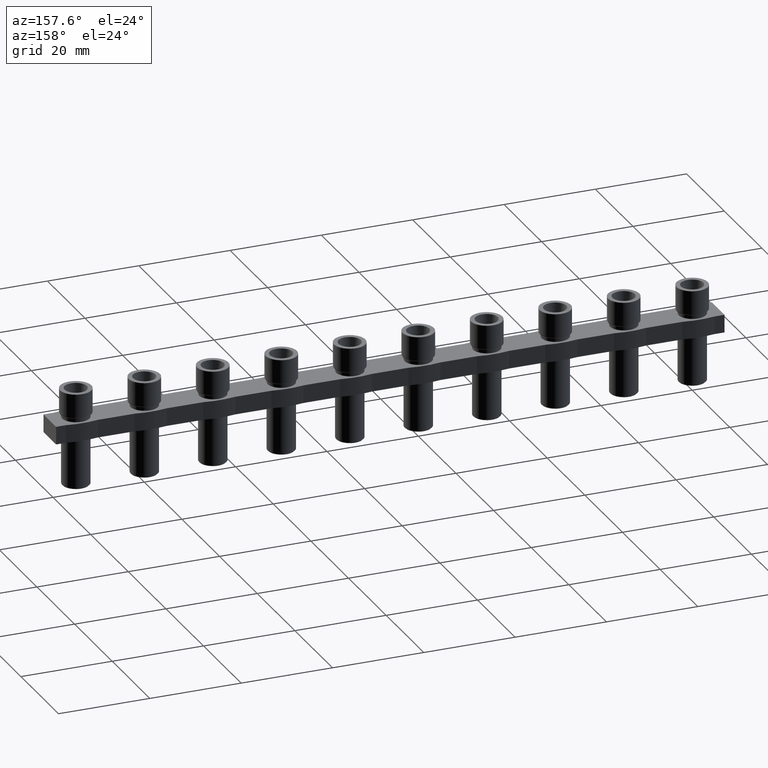
[diagram: clean part render]
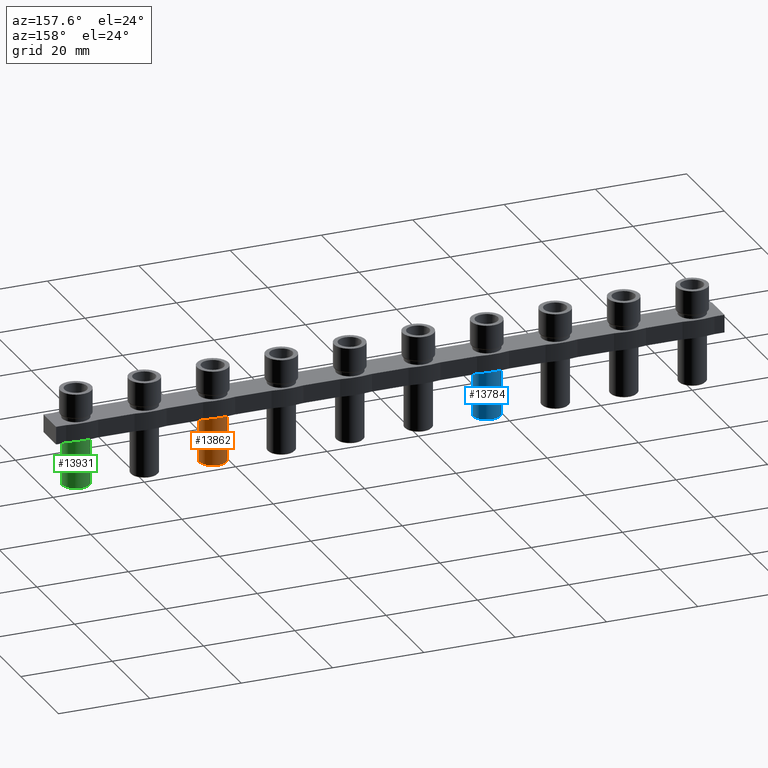
[diagram: same view with three faces highlighted in distinct colors, each labeled with its STEP entity id]
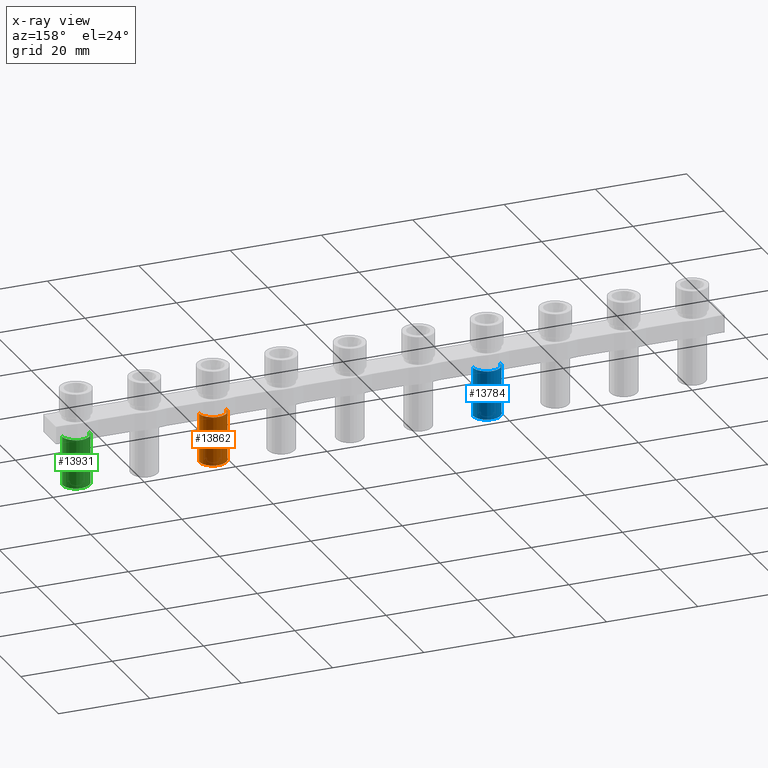
[diagram: x-ray of the same camera — body ghosted, the three highlighted faces saturated]
A machine part, auxiliary view with three faces highlighted in distinct colors.
The next image is the same camera in x-ray (body ghosted, the three faces saturated) — at least one of them is partly hidden behind the body in this view.
Their STEP definitions:

[orange] entity #13862 — the highlighted cylindrical surface (edge-blend (fillet) strip) has radius 3 mm, axis along (0, 0, -1).
#147 = CYLINDRICAL_SURFACE ( 'NONE', #14436, 3.000000000000002700 ) ;
#150 = FACE_OUTER_BOUND ( 'NONE', #3660, .T. ) ;
#152 = CARTESIAN_POINT ( 'NONE',  ( 105.0016776065907700, 3.652635957813867600E-013, -4.800000000000001600 ) ) ;
#170 = DIRECTION ( 'NONE',  ( 1.000000000000000000, 2.491358183583654200E-016, 0.0000000000000000000 ) ) ;
#178 = DIRECTION ( 'NONE',  ( 0.0000000000000000000, 0.0000000000000000000, -1.000000000000000000 ) ) ;
#3660 = EDGE_LOOP ( 'NONE', ( #5886, #5859, #5876, #18261 ) ) ;
#5859 = ORIENTED_EDGE ( 'NONE', *, *, #13180, .T. ) ;
#5876 = ORIENTED_EDGE ( 'NONE', *, *, #13424, .T. ) ;
#5886 = ORIENTED_EDGE ( 'NONE', *, *, #13414, .F. ) ;
#6052 = VERTEX_POINT ( 'NONE', #9357 ) ;
#6064 = VERTEX_POINT ( 'NONE', #9410 ) ;
#6065 = VERTEX_POINT ( 'NONE', #9378 ) ;
#6066 = VERTEX_POINT ( 'NONE', #9418 ) ;
#7784 = DIRECTION ( 'NONE',  ( 1.000000000000000000, 2.491358183583741000E-016, 0.0000000000000000000 ) ) ;
#7809 = DIRECTION ( 'NONE',  ( -0.0000000000000000000, 0.0000000000000000000, -1.000000000000000000 ) ) ;
#7815 = CARTESIAN_POINT ( 'NONE',  ( 105.0016776065907700, 3.652635957813867600E-013, -4.899999999963711200 ) ) ;
#8410 = DIRECTION ( 'NONE',  ( 0.0000000000000000000, 0.0000000000000000000, -1.000000000000000000 ) ) ;
#8416 = CARTESIAN_POINT ( 'NONE',  ( 105.0016776065907700, 3.652635957813867600E-013, -15.60000000000000000 ) ) ;
#8427 = DIRECTION ( 'NONE',  ( 1.000000000000000000, 2.491358183583654200E-016, 0.0000000000000000000 ) ) ;
#9357 = CARTESIAN_POINT ( 'NONE',  ( 102.0016776065418000, 3.641487942865492400E-013, -4.899999999963711200 ) ) ;
#9378 = CARTESIAN_POINT ( 'NONE',  ( 108.0016776065767200, 3.656436091967159300E-013, -15.60000000000000000 ) ) ;
#9410 = CARTESIAN_POINT ( 'NONE',  ( 102.0016776066048300, 3.645161883263151800E-013, -15.60000000000000000 ) ) ;
#9418 = CARTESIAN_POINT ( 'NONE',  ( 108.0016776066397600, 3.660110032364740900E-013, -4.899999999963711200 ) ) ;
#11127 = AXIS2_PLACEMENT_3D ( 'NONE', #8416, #8410, #8427 ) ;
#11151 = CIRCLE ( 'NONE', #11127, 3.000000000000002700 ) ;
#11305 = VECTOR ( 'NONE', #15463, 1000.000000000000000 ) ;
#11346 = VECTOR ( 'NONE', #15529, 1000.000000000000000 ) ;
#12134 = CIRCLE ( 'NONE', #12155, 3.000000000048977300 ) ;
#12155 = AXIS2_PLACEMENT_3D ( 'NONE', #7815, #7809, #7784 ) ;
#13180 = EDGE_CURVE ( 'NONE', #6052, #6066, #12134, .T. ) ;
#13278 = EDGE_CURVE ( 'NONE', #6064, #6065, #11151, .T. ) ;
#13414 = EDGE_CURVE ( 'NONE', #6052, #6064, #15478, .T. ) ;
#13424 = EDGE_CURVE ( 'NONE', #6066, #6065, #15533, .T. ) ;
#13862 = ADVANCED_FACE ( 'NONE', ( #150 ), #147, .T. ) ;
#14436 = AXIS2_PLACEMENT_3D ( 'NONE', #152, #178, #170 ) ;
#15459 = CARTESIAN_POINT ( 'NONE',  ( 102.0016776065907700, 3.641487942865674600E-013, -4.800000000000001600 ) ) ;
#15463 = DIRECTION ( 'NONE',  ( 0.0000000000000000000, 0.0000000000000000000, -1.000000000000000000 ) ) ;
#15478 = LINE ( 'NONE', #15459, #11305 ) ;
#15528 = CARTESIAN_POINT ( 'NONE',  ( 108.0016776065907700, 3.660110032364618800E-013, -4.800000000000001600 ) ) ;
#15529 = DIRECTION ( 'NONE',  ( 0.0000000000000000000, 0.0000000000000000000, -1.000000000000000000 ) ) ;
#15533 = LINE ( 'NONE', #15528, #11346 ) ;
#18261 = ORIENTED_EDGE ( 'NONE', *, *, #13278, .F. ) ;

[blue] entity #13784 — the highlighted cylindrical surface (edge-blend (fillet) strip) has radius 3 mm, axis along (0, 0, -1).
#57 = AXIS2_PLACEMENT_3D ( 'NONE', #1053, #1081, #1141 ) ;
#1051 = FACE_OUTER_BOUND ( 'NONE', #3559, .T. ) ;
#1053 = CARTESIAN_POINT ( 'NONE',  ( 45.00167760659078200, 1.230004896535145500E-013, -4.800000000000001600 ) ) ;
#1080 = CYLINDRICAL_SURFACE ( 'NONE', #57, 3.000000000000002700 ) ;
#1081 = DIRECTION ( 'NONE',  ( 0.0000000000000000000, 0.0000000000000000000, -1.000000000000000000 ) ) ;
#1141 = DIRECTION ( 'NONE',  ( 1.000000000000000000, 2.491358183583736600E-016, 0.0000000000000000000 ) ) ;
#2353 = DIRECTION ( 'NONE',  ( 0.0000000000000000000, 0.0000000000000000000, -1.000000000000000000 ) ) ;
#2356 = CARTESIAN_POINT ( 'NONE',  ( 45.00167760659078200, 1.230004896535145500E-013, -15.60000000000000000 ) ) ;
#2374 = DIRECTION ( 'NONE',  ( 1.000000000000000000, 2.491358183583736600E-016, 0.0000000000000000000 ) ) ;
#3559 = EDGE_LOOP ( 'NONE', ( #3921, #3870, #3886, #3879 ) ) ;
#3870 = ORIENTED_EDGE ( 'NONE', *, *, #13117, .T. ) ;
#3879 = ORIENTED_EDGE ( 'NONE', *, *, #13039, .F. ) ;
#3886 = ORIENTED_EDGE ( 'NONE', *, *, #13556, .T. ) ;
#3921 = ORIENTED_EDGE ( 'NONE', *, *, #13558, .F. ) ;
#6197 = VERTEX_POINT ( 'NONE', #9522 ) ;
#6203 = VERTEX_POINT ( 'NONE', #9491 ) ;
#6229 = VERTEX_POINT ( 'NONE', #9539 ) ;
#6235 = VERTEX_POINT ( 'NONE', #9553 ) ;
#8283 = CARTESIAN_POINT ( 'NONE',  ( 45.00167760659078200, 1.230004896535145500E-013, -4.899999999963711200 ) ) ;
#8284 = DIRECTION ( 'NONE',  ( -0.0000000000000000000, 0.0000000000000000000, -1.000000000000000000 ) ) ;
#8319 = DIRECTION ( 'NONE',  ( 1.000000000000000000, 2.491358183583735100E-016, 0.0000000000000000000 ) ) ;
#9491 = CARTESIAN_POINT ( 'NONE',  ( 42.00167760660483700, 1.222530821984429400E-013, -15.60000000000000000 ) ) ;
#9522 = CARTESIAN_POINT ( 'NONE',  ( 42.00167760654179700, 1.218856881586770500E-013, -4.899999999963711200 ) ) ;
#9539 = CARTESIAN_POINT ( 'NONE',  ( 48.00167760657672700, 1.233805030688436900E-013, -15.60000000000000000 ) ) ;
#9553 = CARTESIAN_POINT ( 'NONE',  ( 48.00167760663976700, 1.237478971086018800E-013, -4.899999999963711200 ) ) ;
#9987 = LINE ( 'NONE', #10070, #11523 ) ;
#10004 = LINE ( 'NONE', #10018, #11546 ) ;
#10005 = DIRECTION ( 'NONE',  ( 0.0000000000000000000, 0.0000000000000000000, -1.000000000000000000 ) ) ;
#10018 = CARTESIAN_POINT ( 'NONE',  ( 42.00167760659078200, 1.218856881586952300E-013, -4.800000000000001600 ) ) ;
#10025 = DIRECTION ( 'NONE',  ( 0.0000000000000000000, 0.0000000000000000000, -1.000000000000000000 ) ) ;
#10070 = CARTESIAN_POINT ( 'NONE',  ( 48.00167760659078200, 1.237478971085896700E-013, -4.800000000000001600 ) ) ;
#11523 = VECTOR ( 'NONE', #10025, 1000.000000000000000 ) ;
#11546 = VECTOR ( 'NONE', #10005, 1000.000000000000000 ) ;
#12003 = CIRCLE ( 'NONE', #12004, 3.000000000000002700 ) ;
#12004 = AXIS2_PLACEMENT_3D ( 'NONE', #2356, #2353, #2374 ) ;
#12111 = AXIS2_PLACEMENT_3D ( 'NONE', #8283, #8284, #8319 ) ;
#12113 = CIRCLE ( 'NONE', #12111, 3.000000000048984400 ) ;
#13039 = EDGE_CURVE ( 'NONE', #6203, #6229, #12003, .T. ) ;
#13117 = EDGE_CURVE ( 'NONE', #6197, #6235, #12113, .T. ) ;
#13556 = EDGE_CURVE ( 'NONE', #6235, #6229, #9987, .T. ) ;
#13558 = EDGE_CURVE ( 'NONE', #6197, #6203, #10004, .T. ) ;
#13784 = ADVANCED_FACE ( 'NONE', ( #1051 ), #1080, .T. ) ;

[green] entity #13931 — the highlighted cylindrical surface (edge-blend (fillet) strip) has radius 3 mm, axis along (0, 0, -1).
#579 = CARTESIAN_POINT ( 'NONE',  ( 135.0016776065907600, 4.863951488453228700E-013, -4.800000000000001600 ) ) ;
#592 = CYLINDRICAL_SURFACE ( 'NONE', #14621, 3.000000000000002700 ) ;
#593 = DIRECTION ( 'NONE',  ( 0.0000000000000000000, 0.0000000000000000000, -1.000000000000000000 ) ) ;
#594 = DIRECTION ( 'NONE',  ( 1.000000000000000000, 2.491358183583654200E-016, 0.0000000000000000000 ) ) ;
#616 = FACE_OUTER_BOUND ( 'NONE', #3700, .T. ) ;
#826 = AXIS2_PLACEMENT_3D ( 'NONE', #7192, #7237, #7224 ) ;
#839 = CIRCLE ( 'NONE', #826, 3.000000000000002700 ) ;
#3700 = EDGE_LOOP ( 'NONE', ( #17259, #17210, #17264, #17167 ) ) ;
#5973 = VERTEX_POINT ( 'NONE', #9285 ) ;
#5989 = VERTEX_POINT ( 'NONE', #9295 ) ;
#5994 = VERTEX_POINT ( 'NONE', #9303 ) ;
#6033 = VERTEX_POINT ( 'NONE', #9373 ) ;
#7192 = CARTESIAN_POINT ( 'NONE',  ( 135.0016776065907600, 4.863951488453228700E-013, -15.60000000000000000 ) ) ;
#7224 = DIRECTION ( 'NONE',  ( 1.000000000000000000, 2.491358183583654200E-016, 0.0000000000000000000 ) ) ;
#7237 = DIRECTION ( 'NONE',  ( 0.0000000000000000000, 0.0000000000000000000, -1.000000000000000000 ) ) ;
#8413 = DIRECTION ( 'NONE',  ( -0.0000000000000000000, 0.0000000000000000000, -1.000000000000000000 ) ) ;
#8422 = DIRECTION ( 'NONE',  ( 1.000000000000000000, 2.491358183583729700E-016, 0.0000000000000000000 ) ) ;
#8432 = CARTESIAN_POINT ( 'NONE',  ( 135.0016776065907600, 4.863951488453228700E-013, -4.899999999963711200 ) ) ;
#9285 = CARTESIAN_POINT ( 'NONE',  ( 132.0016776065417600, 4.852803473504852900E-013, -4.899999999963711200 ) ) ;
#9295 = CARTESIAN_POINT ( 'NONE',  ( 132.0016776066048300, 4.856477413902512800E-013, -15.60000000000000000 ) ) ;
#9303 = CARTESIAN_POINT ( 'NONE',  ( 138.0016776065766900, 4.867751622606519800E-013, -15.60000000000000000 ) ) ;
#9373 = CARTESIAN_POINT ( 'NONE',  ( 138.0016776066397600, 4.871425563004102000E-013, -4.899999999963711200 ) ) ;
#11160 = CIRCLE ( 'NONE', #11177, 3.000000000048991000 ) ;
#11177 = AXIS2_PLACEMENT_3D ( 'NONE', #8432, #8413, #8422 ) ;
#11241 = VECTOR ( 'NONE', #15275, 1000.000000000000000 ) ;
#11307 = VECTOR ( 'NONE', #15355, 1000.000000000000000 ) ;
#13277 = EDGE_CURVE ( 'NONE', #5973, #6033, #11160, .T. ) ;
#13376 = EDGE_CURVE ( 'NONE', #5973, #5989, #15254, .T. ) ;
#13398 = EDGE_CURVE ( 'NONE', #6033, #5994, #15378, .T. ) ;
#13931 = ADVANCED_FACE ( 'NONE', ( #616 ), #592, .T. ) ;
#14621 = AXIS2_PLACEMENT_3D ( 'NONE', #579, #593, #594 ) ;
#14908 = EDGE_CURVE ( 'NONE', #5989, #5994, #839, .T. ) ;
#15254 = LINE ( 'NONE', #15292, #11241 ) ;
#15275 = DIRECTION ( 'NONE',  ( 0.0000000000000000000, 0.0000000000000000000, -1.000000000000000000 ) ) ;
#15292 = CARTESIAN_POINT ( 'NONE',  ( 132.0016776065907600, 4.852803473505035700E-013, -4.800000000000001600 ) ) ;
#15349 = CARTESIAN_POINT ( 'NONE',  ( 138.0016776065907600, 4.871425563003979800E-013, -4.800000000000001600 ) ) ;
#15355 = DIRECTION ( 'NONE',  ( 0.0000000000000000000, 0.0000000000000000000, -1.000000000000000000 ) ) ;
#15378 = LINE ( 'NONE', #15349, #11307 ) ;
#17167 = ORIENTED_EDGE ( 'NONE', *, *, #14908, .F. ) ;
#17210 = ORIENTED_EDGE ( 'NONE', *, *, #13277, .T. ) ;
#17259 = ORIENTED_EDGE ( 'NONE', *, *, #13376, .F. ) ;
#17264 = ORIENTED_EDGE ( 'NONE', *, *, #13398, .T. ) ;